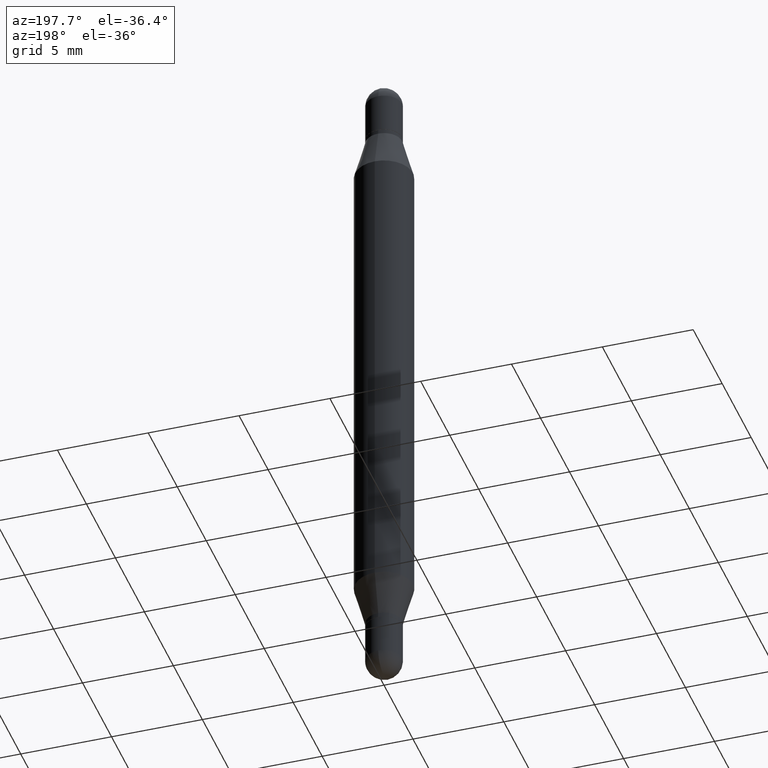
[diagram: clean part render]
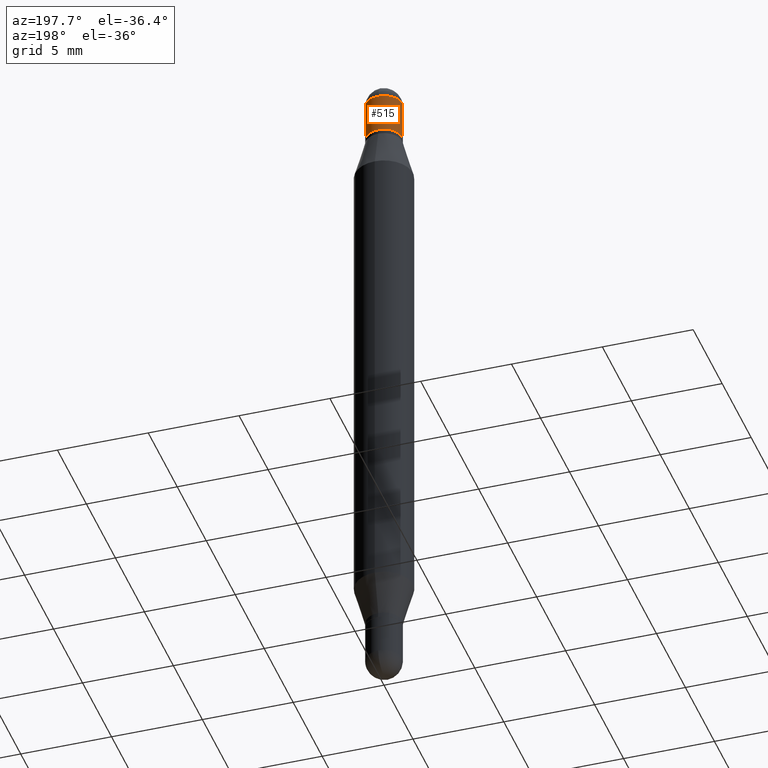
[diagram: same view with one face highlighted and labeled with its STEP entity id]
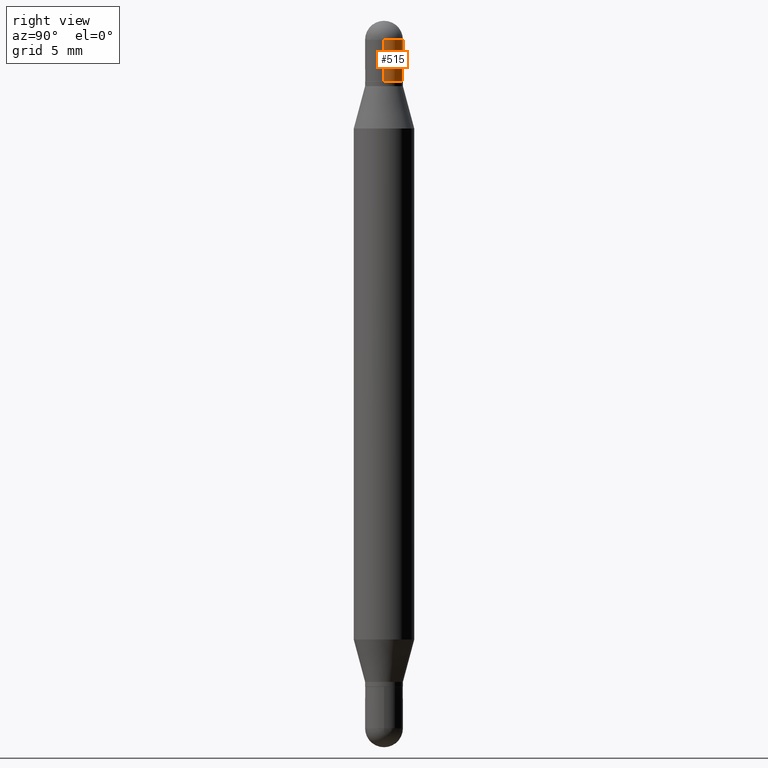
[diagram: same view with one face highlighted and labeled with its STEP entity id]
A machine part, auxiliary view. The second image highlights one B-rep face of the part: STEP entity #515.
A second angle (right view) of the same face is appended — the face is thin or edge-on in the first view.
In plain terms, the highlighted cylindrical surface (edge-blend (fillet) strip) has radius 0.9919 mm, axis along (-0, -0, -1).
Its self-contained STEP definition (entity closure, byte-faithful):
#83 = FACE_OUTER_BOUND ( 'NONE', #931, .T. ) ;
#140 = CARTESIAN_POINT ( 'NONE',  ( 0.03905000000000000138, -7.165366548348628306E-16, -0.1249999999999993477 ) ) ;
#142 = ORIENTED_EDGE ( 'NONE', *, *, #806, .T. ) ;
#145 = LINE ( 'NONE', #485, #154 ) ;
#154 = VECTOR ( 'NONE', #479, 39.37007874015748143 ) ;
#175 = ORIENTED_EDGE ( 'NONE', *, *, #1061, .T. ) ;
#208 = AXIS2_PLACEMENT_3D ( 'NONE', #1020, #420, #241 ) ;
#211 = LINE ( 'NONE', #890, #760 ) ;
#213 = ORIENTED_EDGE ( 'NONE', *, *, #712, .F. ) ;
#225 = AXIS2_PLACEMENT_3D ( 'NONE', #980, #284, #1049 ) ;
#241 = DIRECTION ( 'NONE',  ( 1.000000000000000000, -6.982962677686265133E-15, 0.000000000000000000 ) ) ;
#244 = CIRCLE ( 'NONE', #382, 0.03905000000000000138 ) ;
#284 = DIRECTION ( 'NONE',  ( 2.445468806185136597E-29, 3.479614466977828254E-15, 1.000000000000000000 ) ) ;
#306 = DIRECTION ( 'NONE',  ( 1.000000000000000000, -6.982962677686266711E-15, 0.000000000000000000 ) ) ;
#319 = CIRCLE ( 'NONE', #225, 0.03905000000000000832 ) ;
#321 = CARTESIAN_POINT ( 'NONE',  ( 2.726846925636844142E-16, 0.03904999999999985566, -0.03904999999999954341 ) ) ;
#379 = DIRECTION ( 'NONE',  ( -2.445468806185136877E-29, -3.479614466977828648E-15, -1.000000000000000000 ) ) ;
#382 = AXIS2_PLACEMENT_3D ( 'NONE', #531, #1041, #306 ) ;
#388 = CARTESIAN_POINT ( 'NONE',  ( 0.03905000000000000832, -5.670002231164904615E-16, -0.03904999999999941157 ) ) ;
#401 = VERTEX_POINT ( 'NONE', #388 ) ;
#410 = CARTESIAN_POINT ( 'NONE',  ( -0.03905000000000000138, -2.641308373986373509E-17, -0.1249999999999993477 ) ) ;
#420 = DIRECTION ( 'NONE',  ( -2.445468806185136597E-29, -3.479614466977828254E-15, -1.000000000000000000 ) ) ;
#477 = VERTEX_POINT ( 'NONE', #860 ) ;
#479 = DIRECTION ( 'NONE',  ( -2.445468806185136877E-29, -3.479614466977828648E-15, -1.000000000000000000 ) ) ;
#485 = CARTESIAN_POINT ( 'NONE',  ( -0.03905000000000000832, -4.960419407552750298E-15, -1.499999999999999556 ) ) ;
#515 = ADVANCED_FACE ( 'NONE', ( #83 ), #662, .T. ) ;
#531 = CARTESIAN_POINT ( 'NONE',  ( 3.362519608504562821E-29, -4.438519622712140631E-16, -0.1249999999999993477 ) ) ;
#541 = CARTESIAN_POINT ( 'NONE',  ( 3.572707652396175485E-29, -1.447790988344699412E-16, -0.03904999999999941157 ) ) ;
#580 = ORIENTED_EDGE ( 'NONE', *, *, #613, .F. ) ;
#581 = EDGE_CURVE ( 'NONE', #758, #477, #319, .T. ) ;
#613 = EDGE_CURVE ( 'NONE', #401, #758, #776, .T. ) ;
#662 = CYLINDRICAL_SURFACE ( 'NONE', #208, 0.03905000000000000832 ) ;
#712 = EDGE_CURVE ( 'NONE', #477, #916, #145, .T. ) ;
#742 = VERTEX_POINT ( 'NONE', #140 ) ;
#758 = VERTEX_POINT ( 'NONE', #321 ) ;
#760 = VECTOR ( 'NONE', #379, 39.37007874015748143 ) ;
#776 = CIRCLE ( 'NONE', #902, 0.03905000000000000832 ) ;
#781 = DIRECTION ( 'NONE',  ( 2.445468806185136597E-29, 3.479614466977828254E-15, 1.000000000000000000 ) ) ;
#806 = EDGE_CURVE ( 'NONE', #401, #742, #211, .T. ) ;
#860 = CARTESIAN_POINT ( 'NONE',  ( -0.03905000000000000832, -2.641308373986340229E-17, -0.03904999999999941157 ) ) ;
#876 = ORIENTED_EDGE ( 'NONE', *, *, #581, .F. ) ;
#890 = CARTESIAN_POINT ( 'NONE',  ( 0.03905000000000000832, -5.501006546929377518E-15, -1.499999999999999556 ) ) ;
#902 = AXIS2_PLACEMENT_3D ( 'NONE', #541, #781, #1042 ) ;
#916 = VERTEX_POINT ( 'NONE', #410 ) ;
#931 = EDGE_LOOP ( 'NONE', ( #213, #876, #580, #142, #175 ) ) ;
#980 = CARTESIAN_POINT ( 'NONE',  ( 3.572707652396175485E-29, -1.447790988344699412E-16, -0.03904999999999941157 ) ) ;
#1020 = CARTESIAN_POINT ( 'NONE',  ( 0.000000000000000000, -5.228321854365729194E-15, -1.499999999999999556 ) ) ;
#1041 = DIRECTION ( 'NONE',  ( 2.445468806185136597E-29, 3.479614466977828254E-15, 1.000000000000000000 ) ) ;
#1042 = DIRECTION ( 'NONE',  ( 1.000000000000000000, -6.982962677686265133E-15, 0.000000000000000000 ) ) ;
#1049 = DIRECTION ( 'NONE',  ( 1.000000000000000000, -6.982962677686265133E-15, 0.000000000000000000 ) ) ;
#1061 = EDGE_CURVE ( 'NONE', #742, #916, #244, .T. ) ;